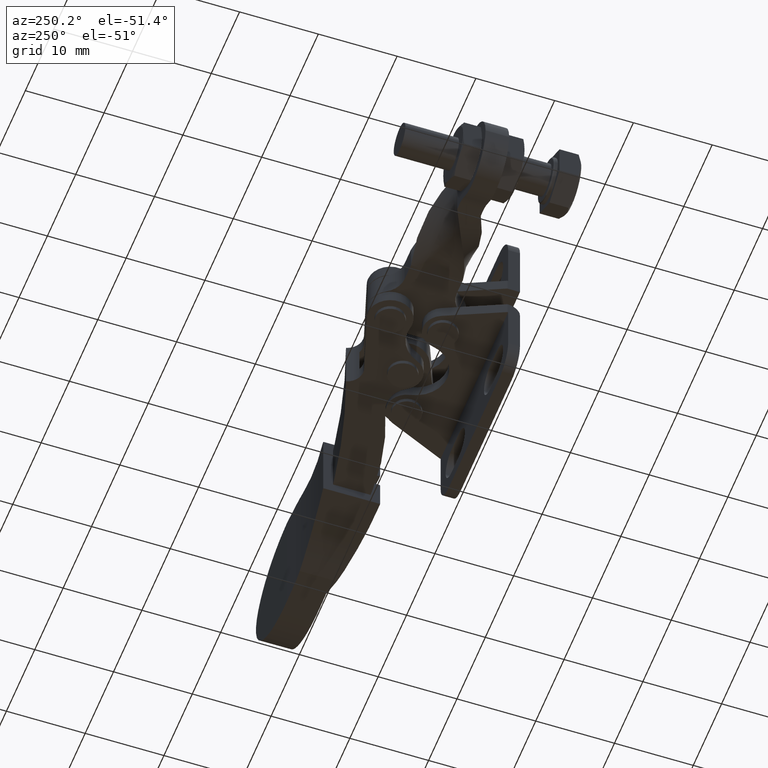
[diagram: clean part render]
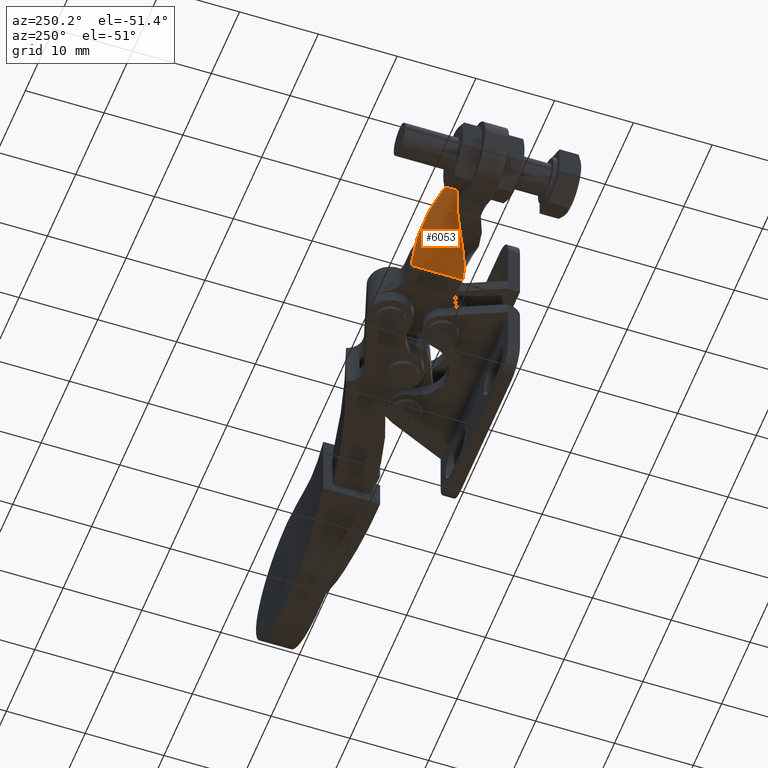
[diagram: same view with one face highlighted and labeled with its STEP entity id]
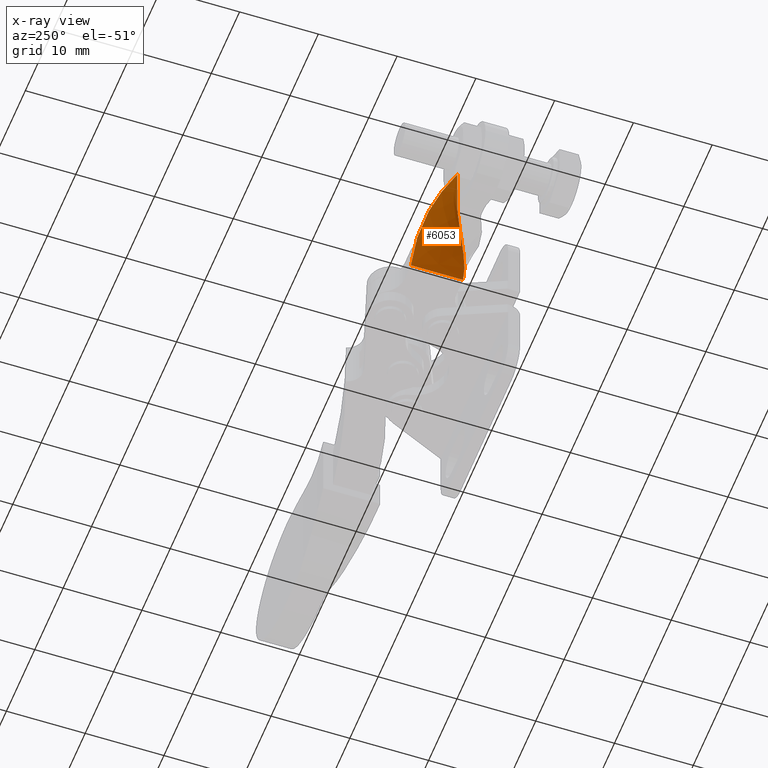
[diagram: x-ray of the same camera — body ghosted, the highlighted face saturated]
A machine part, auxiliary view. The second image highlights one B-rep face of the part: STEP entity #6053.
The next image is the same camera in x-ray: the body ghosted, the highlighted face saturated — about 0% of this face is hidden behind the body in this view.
In plain terms, the highlighted face is a freeform B-spline surface patch.
Its self-contained STEP definition (entity closure, byte-faithful):
#591 = LINE ( 'NONE', #7584, #748 ) ;
#748 = VECTOR ( 'NONE', #7595, 1000.000000000000000 ) ;
#934 = B_SPLINE_CURVE_WITH_KNOTS ( 'NONE', 3,
 ( #8323, #4922, #2853, #6913, #6971, #7008, #7096, #7223, #7251, #7555, #7586, #7621 ),
 .UNSPECIFIED., .F., .F.,
 ( 4, 2, 2, 2, 2, 4 ),
 ( 8.845920412570872000E-017, 0.003137788512065165700, 0.004706682768097704600, 0.006275577024130243000, 0.009413365536195320700, 0.01255115404826040100 ),
 .UNSPECIFIED. ) ;
#1182 = EDGE_LOOP ( 'NONE', ( #5246, #1985, #3550, #2296 ) ) ;
#1444 = B_SPLINE_CURVE_WITH_KNOTS ( 'NONE', 3,
 ( #3475, #3536, #3581, #3590, #3623, #3689, #3699, #3729, #3747, #3867, #3930, #3959 ),
 .UNSPECIFIED., .F., .F.,
 ( 4, 2, 2, 2, 2, 4 ),
 ( 1.063181719063449500E-016, 0.003137740115675806600, 0.004706610173513653900, 0.006275480231351500400, 0.009413220347027198600, 0.01255096046270289700 ),
 .UNSPECIFIED. ) ;
#1985 = ORIENTED_EDGE ( 'NONE', *, *, #2534, .F. ) ;
#2277 = CARTESIAN_POINT ( 'NONE',  ( -1.700000000001332400, 7.850000000000851400, -3.000000000000015500 ) ) ;
#2296 = ORIENTED_EDGE ( 'NONE', *, *, #3753, .F. ) ;
#2431 = VERTEX_POINT ( 'NONE', #2277 ) ;
#2534 = EDGE_CURVE ( 'NONE', #4485, #2431, #1444, .T. ) ;
#2853 = CARTESIAN_POINT ( 'NONE',  ( -3.580373271088751300, 14.75476970724441700, -2.097602755560538800 ) ) ;
#2916 = FACE_OUTER_BOUND ( 'NONE', #1182, .T. ) ;
#3475 = CARTESIAN_POINT ( 'NONE',  ( -13.00000000000110800, 12.65000000000089400, -4.800000000000004300 ) ) ;
#3536 = CARTESIAN_POINT ( 'NONE',  ( -12.05273290863458000, 12.21546038648853600, -4.997520713854538800 ) ) ;
#3550 = ORIENTED_EDGE ( 'NONE', *, *, #8854, .T. ) ;
#3581 = CARTESIAN_POINT ( 'NONE',  ( -11.11907475817120700, 11.74873570132781500, -5.105190751116920100 ) ) ;
#3590 = CARTESIAN_POINT ( 'NONE',  ( -9.718163880893152800, 11.04268150160597600, -5.130244770888344500 ) ) ;
#3623 = CARTESIAN_POINT ( 'NONE',  ( -9.251092481530269800, 10.80637686926643700, -5.115439580711091100 ) ) ;
#3689 = CARTESIAN_POINT ( 'NONE',  ( -8.312931951751565400, 10.33963637827372200, -5.039762656037132700 ) ) ;
#3699 = CARTESIAN_POINT ( 'NONE',  ( -7.840608725756748500, 10.10852170067374600, -4.978863656072482200 ) ) ;
#3729 = CARTESIAN_POINT ( 'NONE',  ( -6.421088553330752900, 9.439092760620329900, -4.729618685388605700 ) ) ;
#3747 = CARTESIAN_POINT ( 'NONE',  ( -5.479475941613792100, 9.029414553449205600, -4.474355225342990600 ) ) ;
#3753 = EDGE_CURVE ( 'NONE', #8849, #7321, #934, .T. ) ;
#3764 = CARTESIAN_POINT ( 'NONE',  ( -13.00000000000131300, 12.65000000000087300, -1.499999999999946300 ) ) ;
#3867 = CARTESIAN_POINT ( 'NONE',  ( -3.586792409334669300, 8.331912724260302400, -3.824222492856024200 ) ) ;
#3930 = CARTESIAN_POINT ( 'NONE',  ( -2.647289320828788700, 8.047525349060878200, -3.434549810822030900 ) ) ;
#3959 = CARTESIAN_POINT ( 'NONE',  ( -1.700000000001332400, 7.850000000000851400, -3.000000000000015500 ) ) ;
#4091 = CARTESIAN_POINT ( 'NONE',  ( -1.700000000001221400, 14.51666000000089000, -3.000000000000000000 ) ) ;
#4096 = CARTESIAN_POINT ( 'NONE',  ( -1.700000000001221400, 14.49444000000089100, -3.000000000000000000 ) ) ;
#4097 = CARTESIAN_POINT ( 'NONE',  ( -1.700000000001221400, 14.47222000000089000, -3.000000000000000000 ) ) ;
#4110 = CARTESIAN_POINT ( 'NONE',  ( -1.700000000001221400, 14.45000000000088900, -3.000000000000000000 ) ) ;
#4111 = CARTESIAN_POINT ( 'NONE',  ( -1.700000000001207400, 12.25000000000087000, -3.000000000000000400 ) ) ;
#4124 = CARTESIAN_POINT ( 'NONE',  ( -1.700000000001228300, 10.05000000000087100, -2.999999999999999100 ) ) ;
#4131 = CARTESIAN_POINT ( 'NONE',  ( -1.700000000001217900, 7.850000000000861200, -2.999999999999998700 ) ) ;
#4136 = CARTESIAN_POINT ( 'NONE',  ( -1.700000000001217900, 7.828000000000861800, -2.999999999999999100 ) ) ;
#4148 = CARTESIAN_POINT ( 'NONE',  ( -1.700000000001217900, 7.806000000000860700, -2.999999999999999100 ) ) ;
#4149 = CARTESIAN_POINT ( 'NONE',  ( -1.700000000001217900, 7.784000000000860500, -3.000000000000000000 ) ) ;
#4164 = CARTESIAN_POINT ( 'NONE',  ( -3.313914808617696400, 14.85318780643044800, -2.244699607409254700 ) ) ;
#4179 = CARTESIAN_POINT ( 'NONE',  ( -3.313918309055025300, 14.83096849717728100, -2.249682972390628900 ) ) ;
#4183 = CARTESIAN_POINT ( 'NONE',  ( -3.313921809492354200, 14.80874918792411600, -2.254666337372003100 ) ) ;
#4196 = CARTESIAN_POINT ( 'NONE',  ( -3.313925309929683000, 14.78652987867095100, -2.259649702353376800 ) ) ;
#4204 = CARTESIAN_POINT ( 'NONE',  ( -3.314271887883017500, 12.58659826944669500, -2.753052175756749400 ) ) ;
#4206 = CARTESIAN_POINT ( 'NONE',  ( -3.314271887898413200, 10.38659439033271800, -3.246953111458808400 ) ) ;
#4222 = CARTESIAN_POINT ( 'NONE',  ( -3.313925309927110400, 8.186518249237783700, -3.740355583758177900 ) ) ;
#4223 = CARTESIAN_POINT ( 'NONE',  ( -3.313921844147397000, 8.164517487826835000, -3.745289608481172200 ) ) ;
#4232 = CARTESIAN_POINT ( 'NONE',  ( -3.313918378367683500, 8.142516726415884400, -3.750223633204165600 ) ) ;
#4240 = CARTESIAN_POINT ( 'NONE',  ( -3.313914912587969700, 8.120515965004937400, -3.755157657927159100 ) ) ;
#4242 = CARTESIAN_POINT ( 'NONE',  ( -6.273715632824330000, 14.98025393885479100, -0.6472820269556594000 ) ) ;
#4251 = CARTESIAN_POINT ( 'NONE',  ( -6.273715535448983100, 14.96125378534301300, -0.6613754630178450000 ) ) ;
#4253 = CARTESIAN_POINT ( 'NONE',  ( -6.273715438073635300, 14.94225363183123400, -0.6754688990800302700 ) ) ;
#4268 = CARTESIAN_POINT ( 'NONE',  ( -6.273715340698288400, 14.92325347831945400, -0.6895623351422155400 ) ) ;
#4289 = CARTESIAN_POINT ( 'NONE',  ( -6.273705699574806600, 13.04205016032150500, -2.084952044269476400 ) ) ;
#4290 = CARTESIAN_POINT ( 'NONE',  ( -6.273705699573925500, 11.16077766252645600, -3.480381048204218800 ) ) ;
#4301 = CARTESIAN_POINT ( 'NONE',  ( -6.273715340698709400, 9.279560337093174700, -4.875752729050333300 ) ) ;
#4306 = CARTESIAN_POINT ( 'NONE',  ( -6.273715437109956400, 9.260748163838842500, -4.889706445858794700 ) ) ;
#4316 = CARTESIAN_POINT ( 'NONE',  ( -6.273715533521203400, 9.241935990584510200, -4.903660162667255100 ) ) ;
#4317 = CARTESIAN_POINT ( 'NONE',  ( -6.273715629932451200, 9.223123817330177900, -4.917613879475717400 ) ) ;
#4328 = CARTESIAN_POINT ( 'NONE',  ( -10.04051864744532600, 13.95830852567024200, 1.078180187622888300 ) ) ;
#4340 = CARTESIAN_POINT ( 'NONE',  ( -10.04052022430597400, 13.94916855783689500, 1.057092552828669400 ) ) ;
#4355 = CARTESIAN_POINT ( 'NONE',  ( -10.04052180116662100, 13.94002859000354600, 1.036004918034450200 ) ) ;
#4356 = CARTESIAN_POINT ( 'NONE',  ( -10.04052337802726800, 13.93088862217019800, 1.014917283240230900 ) ) ;
#4367 = CARTESIAN_POINT ( 'NONE',  ( -10.04067950284389700, 13.02594131193774600, -1.072967349850771900 ) ) ;
#4376 = CARTESIAN_POINT ( 'NONE',  ( -10.04067950285247900, 12.12121850830295200, -3.160884567383839700 ) ) ;
#4389 = CARTESIAN_POINT ( 'NONE',  ( -10.04052337802481400, 11.21627118787179200, -5.248834298836682100 ) ) ;
#4390 = CARTESIAN_POINT ( 'NONE',  ( -10.04052181677653800, 11.20722171466748100, -5.269713796151210200 ) ) ;
#4402 = CARTESIAN_POINT ( 'NONE',  ( -10.04052025552826100, 11.19817224146316900, -5.290593293465739100 ) ) ;
#4424 = CARTESIAN_POINT ( 'NONE',  ( -10.04051869427998300, 11.18912276825885700, -5.311472790780267200 ) ) ;
#4425 = CARTESIAN_POINT ( 'NONE',  ( -12.19298827668804600, 13.02767561719421300, 1.698384770377839000 ) ) ;
#4437 = CARTESIAN_POINT ( 'NONE',  ( -12.19298652635159300, 13.02518376698003300, 1.676164424981088100 ) ) ;
#4445 = CARTESIAN_POINT ( 'NONE',  ( -12.19298477601513800, 13.02269191676585400, 1.653944079584337900 ) ) ;
#4460 = CARTESIAN_POINT ( 'NONE',  ( -12.19298302567868600, 13.02020006655167400, 1.631723734187587600 ) ) ;
#4462 = CARTESIAN_POINT ( 'NONE',  ( -12.19280972503967300, 12.77348222356359400, -0.5683104635104603300 ) ) ;
#4470 = CARTESIAN_POINT ( 'NONE',  ( -12.19280972503017500, 12.52651513266148900, -2.768308523838695700 ) ) ;
#4485 = VERTEX_POINT ( 'NONE', #5082 ) ;
#4489 = CARTESIAN_POINT ( 'NONE',  ( -12.19298302568139300, 12.27979729021085500, -4.968270450699179700 ) ) ;
#4490 = CARTESIAN_POINT ( 'NONE',  ( -12.19298475868790500, 12.27733011178635000, -4.990270069967785100 ) ) ;
#4506 = CARTESIAN_POINT ( 'NONE',  ( -12.19298649169441800, 12.27486293336184400, -5.012269689236389600 ) ) ;
#4524 = CARTESIAN_POINT ( 'NONE',  ( -12.19298822470093000, 12.27239575493733700, -5.034269308504994100 ) ) ;
#4526 = CARTESIAN_POINT ( 'NONE',  ( -13.00000000000123800, 12.65000000000085100, 1.866660000000020400 ) ) ;
#4533 = CARTESIAN_POINT ( 'NONE',  ( -13.00000000000123800, 12.65000000000085100, 1.844440000000020500 ) ) ;
#4534 = CARTESIAN_POINT ( 'NONE',  ( -13.00000000000123800, 12.65000000000085100, 1.822220000000020600 ) ) ;
#4549 = CARTESIAN_POINT ( 'NONE',  ( -13.00000000000123800, 12.65000000000085300, 1.800000000000019800 ) ) ;
#4551 = CARTESIAN_POINT ( 'NONE',  ( -13.00000000000123600, 12.65000000000086700, -0.3999999999999963000 ) ) ;
#4561 = CARTESIAN_POINT ( 'NONE',  ( -13.00000000000123300, 12.65000000000087300, -2.599999999999997900 ) ) ;
#4563 = CARTESIAN_POINT ( 'NONE',  ( -13.00000000000123300, 12.65000000000088000, -4.800000000000008700 ) ) ;
#4580 = CARTESIAN_POINT ( 'NONE',  ( -13.00000000000123300, 12.65000000000088000, -4.866000000000010300 ) ) ;
#4922 = CARTESIAN_POINT ( 'NONE',  ( -2.647260311567468900, 14.64751930015641300, -2.565466599164995200 ) ) ;
#5082 = CARTESIAN_POINT ( 'NONE',  ( -13.00000000000110800, 12.65000000000089400, -4.800000000000004300 ) ) ;
#5109 = CARTESIAN_POINT ( 'NONE',  ( -13.00000000000123300, 12.65000000000088000, -4.822000000000010700 ) ) ;
#5143 = CARTESIAN_POINT ( 'NONE',  ( -13.00000000000123300, 12.65000000000088000, -4.844000000000010100 ) ) ;
#5246 = ORIENTED_EDGE ( 'NONE', *, *, #7312, .F. ) ;
#5990 = CARTESIAN_POINT ( 'NONE',  ( -1.700000000001311600, 14.45000000000088900, -2.999999999999983100 ) ) ;
#6053 = ADVANCED_FACE ( 'NONE', ( #2916 ), #8838, .F. ) ;
#6913 = CARTESIAN_POINT ( 'NONE',  ( -4.981353118700091900, 14.77961252432975800, -1.391620430610162700 ) ) ;
#6971 = CARTESIAN_POINT ( 'NONE',  ( -5.448614293126000900, 14.76494088375699000, -1.155681791319470400 ) ) ;
#7008 = CARTESIAN_POINT ( 'NONE',  ( -6.387115827719929600, 14.68970656156159800, -0.6895885225460817200 ) ) ;
#7096 = CARTESIAN_POINT ( 'NONE',  ( -6.859544075275250600, 14.62897580488499500, -0.4585807668038050500 ) ) ;
#7223 = CARTESIAN_POINT ( 'NONE',  ( -8.278772689263135500, 14.37922535292866800, 0.2112444821433132300 ) ) ;
#7249 = VECTOR ( 'NONE', #7385, 1000.000000000000000 ) ;
#7251 = CARTESIAN_POINT ( 'NONE',  ( -9.220433003583163900, 14.12373571504110400, 0.6208059214947727600 ) ) ;
#7291 = LINE ( 'NONE', #3764, #7249 ) ;
#7312 = EDGE_CURVE ( 'NONE', #2431, #8849, #591, .T. ) ;
#7321 = VERTEX_POINT ( 'NONE', #7366 ) ;
#7366 = CARTESIAN_POINT ( 'NONE',  ( -13.00000000000143700, 12.65000000000084600, 1.800000000000023400 ) ) ;
#7385 = DIRECTION ( 'NONE',  ( -9.904719299863419700E-014, -1.082467449009527600E-014, 1.000000000000000000 ) ) ;
#7555 = CARTESIAN_POINT ( 'NONE',  ( -11.11372239880884500, 13.47508455189070100, 1.317861660465887000 ) ) ;
#7584 = CARTESIAN_POINT ( 'NONE',  ( -1.700000000001256100, 11.15000000000086000, -2.999999999999995600 ) ) ;
#7586 = CARTESIAN_POINT ( 'NONE',  ( -12.05274712177611600, 13.08452999096389000, 1.602482249815458500 ) ) ;
#7595 = DIRECTION ( 'NONE',  ( -4.481942456846721100E-014, 1.000000000000000000, 1.082467449009527600E-014 ) ) ;
#7621 = CARTESIAN_POINT ( 'NONE',  ( -13.00000000000143700, 12.65000000000084600, 1.800000000000023400 ) ) ;
#8323 = CARTESIAN_POINT ( 'NONE',  ( -1.700000000001311600, 14.45000000000088900, -2.999999999999983100 ) ) ;
#8838 = B_SPLINE_SURFACE_WITH_KNOTS ( 'NONE', 3, 3, ( 
 ( #4580, #5143, #5109, #4563, #4561, #4551, #4549, #4534, #4533, #4526 ),
 ( #4524, #4506, #4490, #4489, #4470, #4462, #4460, #4445, #4437, #4425 ),
 ( #4424, #4402, #4390, #4389, #4376, #4367, #4356, #4355, #4340, #4328 ),
 ( #4317, #4316, #4306, #4301, #4290, #4289, #4268, #4253, #4251, #4242 ),
 ( #4240, #4232, #4223, #4222, #4206, #4204, #4196, #4183, #4179, #4164 ),
 ( #4149, #4148, #4136, #4131, #4124, #4111, #4110, #4097, #4096, #4091 ) ),
 .UNSPECIFIED., .F., .F., .F.,
 ( 4, 1, 1, 4 ),
 ( 4, 3, 3, 4 ),
 ( 0.0000000000000000000, 0.2143042601566431700, 0.5714203288192693000, 1.000000000000000000 ),
 ( -0.01000000000000000000, 0.0000000000000000000, 1.000000000000000000, 1.010100000000000000 ),
 .UNSPECIFIED. ) ;
#8849 = VERTEX_POINT ( 'NONE', #5990 ) ;
#8854 = EDGE_CURVE ( 'NONE', #4485, #7321, #7291, .T. ) ;